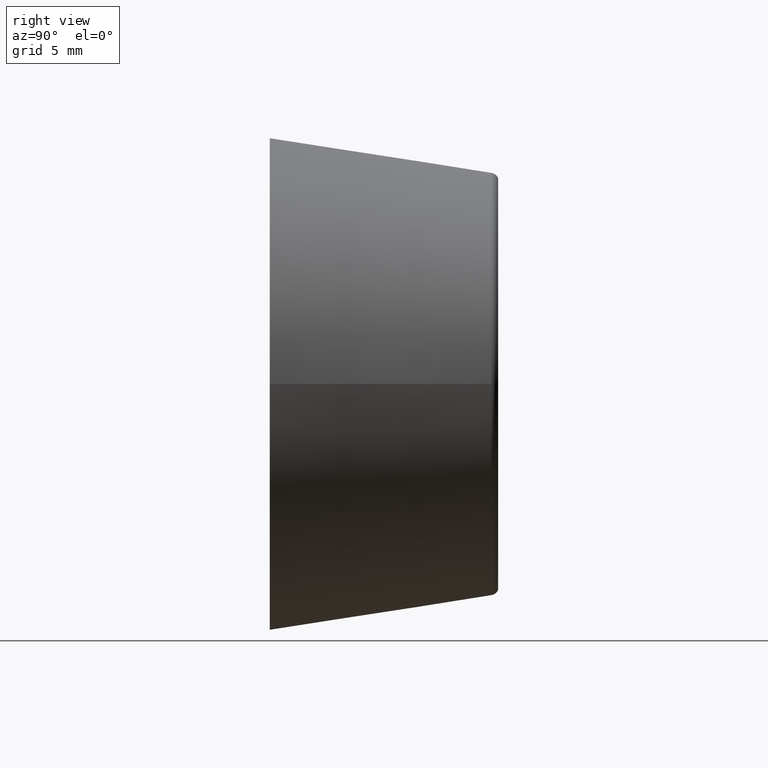
[diagram: clean part render]
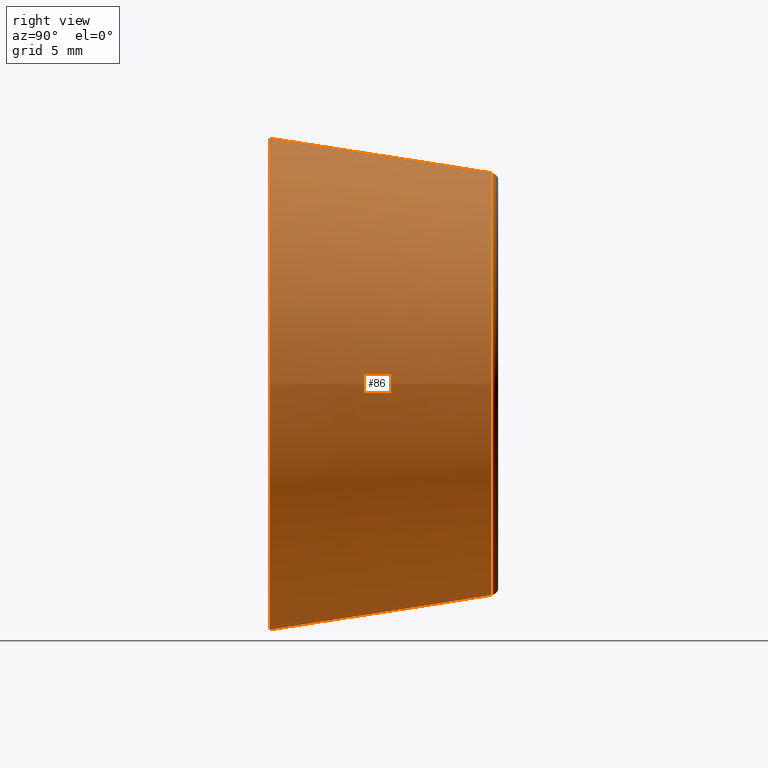
[diagram: same view with one face highlighted and labeled with its STEP entity id]
A machine part, right view. The second image highlights one B-rep face of the part: STEP entity #86.
In plain terms, the highlighted conical surface has half-angle 8.746 deg.
Its self-contained STEP definition (entity closure, byte-faithful):
#19=CONICAL_SURFACE('',#97,14.,8.7461622625552);
#22=FACE_BOUND('',#38,.T.);
#29=FACE_OUTER_BOUND('',#37,.T.);
#37=EDGE_LOOP('',(#72));
#38=EDGE_LOOP('',(#73));
#50=CIRCLE('',#96,12.0598051462738);
#51=CIRCLE('',#98,14.);
#57=VERTEX_POINT('',#142);
#58=VERTEX_POINT('',#145);
#64=EDGE_CURVE('',#57,#57,#50,.T.);
#65=EDGE_CURVE('',#58,#58,#51,.T.);
#72=ORIENTED_EDGE('',*,*,#65,.T.);
#73=ORIENTED_EDGE('',*,*,#64,.F.);
#86=ADVANCED_FACE('',(#29,#22),#19,.T.);
#96=AXIS2_PLACEMENT_3D('',#143,#114,#115);
#97=AXIS2_PLACEMENT_3D('',#144,#116,#117);
#98=AXIS2_PLACEMENT_3D('',#146,#118,#119);
#114=DIRECTION('center_axis',(2.73413842063985E-49,1.,2.23259344861185E-33));
#115=DIRECTION('ref_axis',(1.,0.,-1.22464679914735E-16));
#116=DIRECTION('center_axis',(0.,-1.,0.));
#117=DIRECTION('ref_axis',(1.,0.,0.));
#118=DIRECTION('center_axis',(0.,1.,0.));
#119=DIRECTION('ref_axis',(1.,0.,0.));
#142=CARTESIAN_POINT('',(-12.0598051462738,12.6112665492205,2.95380035414499E-15));
#143=CARTESIAN_POINT('Origin',(2.07872694801508E-50,12.6112665492205,1.69740936689858E-34));
#144=CARTESIAN_POINT('Origin',(0.,0.,0.));
#145=CARTESIAN_POINT('',(14.,0.,0.));
#146=CARTESIAN_POINT('Origin',(0.,0.,0.));